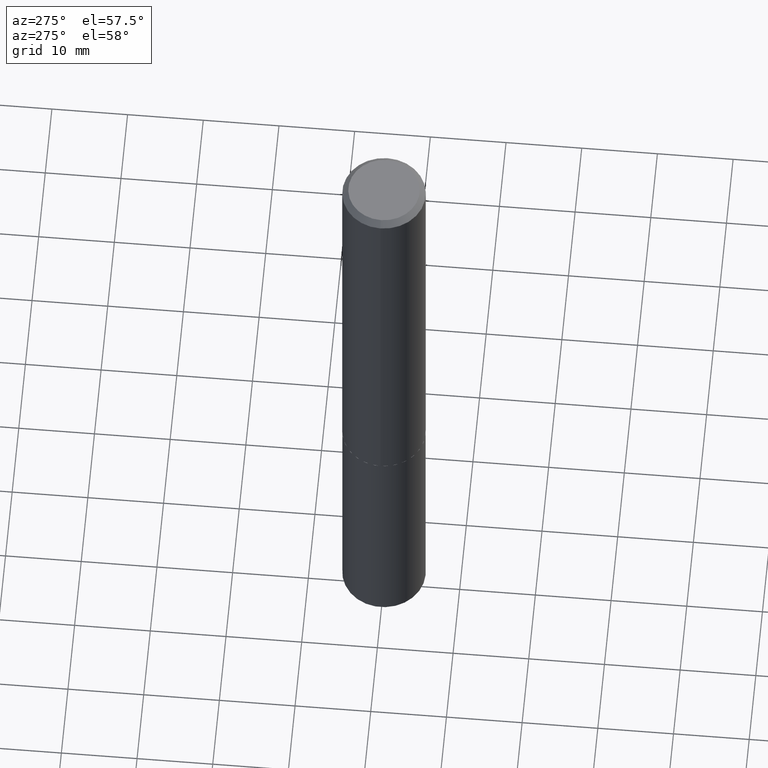
[diagram: clean part render]
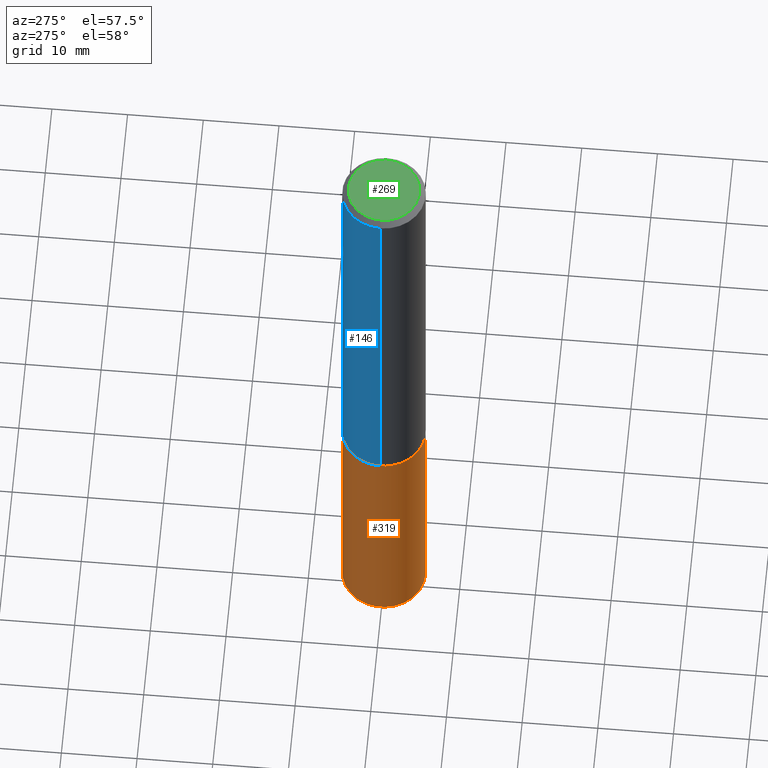
[diagram: same view with three faces highlighted in distinct colors, each labeled with its STEP entity id]
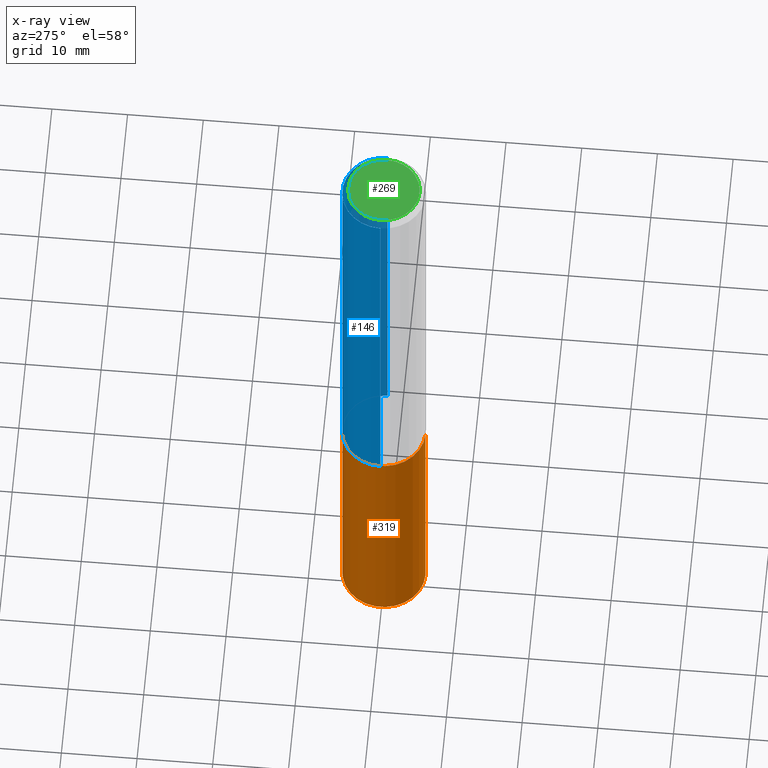
[diagram: x-ray of the same camera — body ghosted, the three highlighted faces saturated]
A machine part, auxiliary view with three faces highlighted in distinct colors.
The next image is the same camera in x-ray (body ghosted, the three faces saturated) — at least one of them is partly hidden behind the body in this view.
Their STEP definitions:

[orange] entity #319 — the highlighted cylindrical surface (partial cylindrical patch) has radius 5.5004 mm, axis along (-0, 0, 1).
#2 = ORIENTED_EDGE ( 'NONE', *, *, #218, .T. ) ;
#7 = CARTESIAN_POINT ( 'NONE',  ( -1.512160567852904222E-15, -0.2165500000000081249, -2.322899999999999299 ) ) ;
#11 = DIRECTION ( 'NONE',  ( -2.445528827278945188E-29, 3.491395385220622639E-15, 1.000000000000000000 ) ) ;
#13 = CYLINDRICAL_SURFACE ( 'NONE', #362, 0.2165500000000000203 ) ;
#16 = DIRECTION ( 'NONE',  ( -2.445528827278945468E-29, 3.491395385220622639E-15, 1.000000000000000000 ) ) ;
#50 = ORIENTED_EDGE ( 'NONE', *, *, #125, .T. ) ;
#71 = CIRCLE ( 'NONE', #128, 0.2165500000000000203 ) ;
#79 = CARTESIAN_POINT ( 'NONE',  ( 5.680579489887453942E-29, -8.110362001998743924E-15, -2.322900000000000187 ) ) ;
#82 = DIRECTION ( 'NONE',  ( -2.445528827278945188E-29, 3.491395385220622639E-15, 1.000000000000000000 ) ) ;
#93 = CARTESIAN_POINT ( 'NONE',  ( -1.512160567852904222E-15, -0.2165500000000081249, -2.322899999999999299 ) ) ;
#107 = LINE ( 'NONE', #343, #285 ) ;
#125 = EDGE_CURVE ( 'NONE', #159, #176, #360, .T. ) ;
#126 = EDGE_CURVE ( 'NONE', #172, #176, #369, .T. ) ;
#128 = AXIS2_PLACEMENT_3D ( 'NONE', #166, #16, #315 ) ;
#129 = CARTESIAN_POINT ( 'NONE',  ( -1.512160567852871090E-15, -0.2165500000000128711, -3.682175602379041290 ) ) ;
#130 = VERTEX_POINT ( 'NONE', #249 ) ;
#135 = AXIS2_PLACEMENT_3D ( 'NONE', #366, #364, #335 ) ;
#159 = VERTEX_POINT ( 'NONE', #129 ) ;
#166 = CARTESIAN_POINT ( 'NONE',  ( 9.004727159722352583E-29, -1.285613056738791037E-14, -3.682175602379041734 ) ) ;
#172 = VERTEX_POINT ( 'NONE', #224 ) ;
#176 = VERTEX_POINT ( 'NONE', #7 ) ;
#192 = ORIENTED_EDGE ( 'NONE', *, *, #223, .F. ) ;
#199 = DIRECTION ( 'NONE',  ( -2.445528827278945468E-29, 3.491395385220622639E-15, 1.000000000000000000 ) ) ;
#218 = EDGE_CURVE ( 'NONE', #130, #159, #71, .T. ) ;
#223 = EDGE_CURVE ( 'NONE', #130, #172, #107, .T. ) ;
#224 = CARTESIAN_POINT ( 'NONE',  ( 1.538680294288586829E-15, 0.2165499999999918879, -2.322900000000001075 ) ) ;
#228 = EDGE_LOOP ( 'NONE', ( #192, #2, #50, #313 ) ) ;
#232 = FACE_OUTER_BOUND ( 'NONE', #228, .T. ) ;
#249 = CARTESIAN_POINT ( 'NONE',  ( 1.538680294288587027E-15, 0.2165499999999871972, -3.682175602379042179 ) ) ;
#285 = VECTOR ( 'NONE', #82, 39.37007874015748143 ) ;
#313 = ORIENTED_EDGE ( 'NONE', *, *, #126, .F. ) ;
#315 = DIRECTION ( 'NONE',  ( -6.982962677686265133E-15, -1.000000000000000000, 2.523064413451178124E-15 ) ) ;
#316 = VECTOR ( 'NONE', #11, 39.37007874015748143 ) ;
#319 = ADVANCED_FACE ( 'NONE', ( #232 ), #13, .T. ) ;
#335 = DIRECTION ( 'NONE',  ( -6.982962677686265133E-15, -1.000000000000000000, 3.784596620176766988E-15 ) ) ;
#343 = CARTESIAN_POINT ( 'NONE',  ( 1.538680294288553500E-15, 0.2165499999999918879, -2.322900000000001075 ) ) ;
#360 = LINE ( 'NONE', #93, #316 ) ;
#362 = AXIS2_PLACEMENT_3D ( 'NONE', #79, #199, #382 ) ;
#364 = DIRECTION ( 'NONE',  ( -2.445528827278945468E-29, 3.491395385220622639E-15, 1.000000000000000000 ) ) ;
#366 = CARTESIAN_POINT ( 'NONE',  ( 5.680579489887453942E-29, -8.110362001998743924E-15, -2.322900000000000187 ) ) ;
#369 = CIRCLE ( 'NONE', #135, 0.2165500000000000203 ) ;
#382 = DIRECTION ( 'NONE',  ( -6.982962677686265133E-15, -1.000000000000000000, 3.784596620176766988E-15 ) ) ;

[blue] entity #146 — the highlighted cylindrical surface (partial cylindrical patch) has radius 5.5004 mm, axis along (-0, 0, 1).
#5 = EDGE_CURVE ( 'NONE', #165, #300, #114, .T. ) ;
#15 = ORIENTED_EDGE ( 'NONE', *, *, #5, .T. ) ;
#22 = ORIENTED_EDGE ( 'NONE', *, *, #261, .F. ) ;
#32 = CARTESIAN_POINT ( 'NONE',  ( 0.2165500000000000203, -1.621269359691810318E-15, -0.03125000000000019429 ) ) ;
#36 = DIRECTION ( 'NONE',  ( 1.000000000000000000, -6.982962677686269866E-15, 0.000000000000000000 ) ) ;
#48 = LINE ( 'NONE', #137, #169 ) ;
#65 = DIRECTION ( 'NONE',  ( -2.445468806185136877E-29, 3.491481338843145188E-15, 1.000000000000000000 ) ) ;
#72 = DIRECTION ( 'NONE',  ( -2.445468806185136597E-29, 3.491481338843145583E-15, 1.000000000000000000 ) ) ;
#74 = DIRECTION ( 'NONE',  ( 1.000000000000000000, -6.982962677686266711E-15, 0.000000000000000000 ) ) ;
#95 = DIRECTION ( 'NONE',  ( 1.000000000000000000, -6.982962677686266711E-15, 4.876176775795936353E-29 ) ) ;
#106 = ORIENTED_EDGE ( 'NONE', *, *, #187, .F. ) ;
#111 = CARTESIAN_POINT ( 'NONE',  ( 0.2165500000000002701, -9.620776829182285610E-15, -2.322400000000000464 ) ) ;
#114 = LINE ( 'NONE', #205, #185 ) ;
#137 = CARTESIAN_POINT ( 'NONE',  ( 0.2165500000000001590, -1.512160567852962203E-15, 1.055936080798610736E-29 ) ) ;
#139 = DIRECTION ( 'NONE',  ( -2.445468806185136877E-29, 3.491481338843145188E-15, 1.000000000000000000 ) ) ;
#140 = EDGE_LOOP ( 'NONE', ( #225, #15, #106, #22 ) ) ;
#143 = CIRCLE ( 'NONE', #245, 0.2165500000000002701 ) ;
#146 = ADVANCED_FACE ( 'NONE', ( #191 ), #150, .T. ) ;
#150 = CYLINDRICAL_SURFACE ( 'NONE', #367, 0.2165500000000001590 ) ;
#154 = CARTESIAN_POINT ( 'NONE',  ( -0.2165500000000002701, -6.569935967040822957E-15, -2.322400000000000464 ) ) ;
#165 = VERTEX_POINT ( 'NONE', #154 ) ;
#169 = VECTOR ( 'NONE', #139, 39.37007874015748143 ) ;
#185 = VECTOR ( 'NONE', #65, 39.37007874015748143 ) ;
#187 = EDGE_CURVE ( 'NONE', #377, #300, #361, .T. ) ;
#188 = EDGE_CURVE ( 'NONE', #314, #165, #143, .T. ) ;
#189 = AXIS2_PLACEMENT_3D ( 'NONE', #307, #373, #74 ) ;
#191 = FACE_OUTER_BOUND ( 'NONE', #140, .T. ) ;
#205 = CARTESIAN_POINT ( 'NONE',  ( -0.2165500000000001590, 1.538680294288498082E-15, -1.065195393794700623E-29 ) ) ;
#225 = ORIENTED_EDGE ( 'NONE', *, *, #188, .T. ) ;
#245 = AXIS2_PLACEMENT_3D ( 'NONE', #284, #311, #36 ) ;
#261 = EDGE_CURVE ( 'NONE', #314, #377, #48, .T. ) ;
#276 = CARTESIAN_POINT ( 'NONE',  ( 0.000000000000000000, 0.000000000000000000, 0.000000000000000000 ) ) ;
#284 = CARTESIAN_POINT ( 'NONE',  ( 5.679356755484362262E-29, -8.108616261329323209E-15, -2.322400000000000464 ) ) ;
#300 = VERTEX_POINT ( 'NONE', #347 ) ;
#307 = CARTESIAN_POINT ( 'NONE',  ( 7.642090019328598283E-31, -1.091087918388489651E-16, -0.03125000000000019429 ) ) ;
#311 = DIRECTION ( 'NONE',  ( -2.445468806185136597E-29, 3.491481338843145583E-15, 1.000000000000000000 ) ) ;
#314 = VERTEX_POINT ( 'NONE', #111 ) ;
#347 = CARTESIAN_POINT ( 'NONE',  ( -0.2165500000000000203, -2.570182232295586298E-15, -0.03125000000000019429 ) ) ;
#361 = CIRCLE ( 'NONE', #189, 0.2165500000000000203 ) ;
#367 = AXIS2_PLACEMENT_3D ( 'NONE', #276, #72, #95 ) ;
#373 = DIRECTION ( 'NONE',  ( -2.445468806185136597E-29, 3.491481338843145583E-15, 1.000000000000000000 ) ) ;
#377 = VERTEX_POINT ( 'NONE', #32 ) ;

[green] entity #269 — the highlighted planar face has unit normal (0, -0, -1).
#10 = ORIENTED_EDGE ( 'NONE', *, *, #283, .T. ) ;
#46 = EDGE_LOOP ( 'NONE', ( #10, #91 ) ) ;
#49 = DIRECTION ( 'NONE',  ( -1.000000000000000000, 6.982962677686265922E-15, -4.876176775795935793E-29 ) ) ;
#56 = DIRECTION ( 'NONE',  ( 1.000000000000000000, -6.982962677686266711E-15, 4.876177403239504402E-29 ) ) ;
#59 = CARTESIAN_POINT ( 'NONE',  ( -0.1852999999999999925, 1.348497380094688552E-15, 4.837354856539620827E-19 ) ) ;
#80 = PLANE ( 'NONE',  #353 ) ;
#81 = VERTEX_POINT ( 'NONE', #59 ) ;
#91 = ORIENTED_EDGE ( 'NONE', *, *, #254, .T. ) ;
#113 = CARTESIAN_POINT ( 'NONE',  ( -1.182960040634177403E-47, 1.688953421129294899E-33, 4.837354856632018279E-19 ) ) ;
#116 = CARTESIAN_POINT ( 'NONE',  ( -1.182960040634177403E-47, 1.688953421129294899E-33, 4.837354856632018279E-19 ) ) ;
#163 = DIRECTION ( 'NONE',  ( 2.438088387897960049E-29, -3.491481338843145188E-15, -1.000000000000000000 ) ) ;
#194 = AXIS2_PLACEMENT_3D ( 'NONE', #113, #320, #378 ) ;
#239 = VERTEX_POINT ( 'NONE', #385 ) ;
#254 = EDGE_CURVE ( 'NONE', #239, #81, #339, .T. ) ;
#262 = CARTESIAN_POINT ( 'NONE',  ( -5.914800203170887017E-48, 8.444767105646474497E-34, 2.418677428316009140E-19 ) ) ;
#269 = ADVANCED_FACE ( 'NONE', ( #327 ), #80, .F. ) ;
#283 = EDGE_CURVE ( 'NONE', #81, #239, #368, .T. ) ;
#291 = AXIS2_PLACEMENT_3D ( 'NONE', #116, #295, #56 ) ;
#295 = DIRECTION ( 'NONE',  ( -2.445468806185136597E-29, 3.491481338843145583E-15, 1.000000000000000000 ) ) ;
#320 = DIRECTION ( 'NONE',  ( -2.445468806185136597E-29, 3.491481338843145583E-15, 1.000000000000000000 ) ) ;
#327 = FACE_OUTER_BOUND ( 'NONE', #46, .T. ) ;
#339 = CIRCLE ( 'NONE', #194, 0.1852999999999999925 ) ;
#353 = AXIS2_PLACEMENT_3D ( 'NONE', #262, #163, #49 ) ;
#368 = CIRCLE ( 'NONE', #291, 0.1852999999999999925 ) ;
#378 = DIRECTION ( 'NONE',  ( 1.000000000000000000, -6.982962677686266711E-15, 4.876177403239504402E-29 ) ) ;
#385 = CARTESIAN_POINT ( 'NONE',  ( 0.1852999999999999925, -1.432999956121669510E-15, 4.837354856727365293E-19 ) ) ;